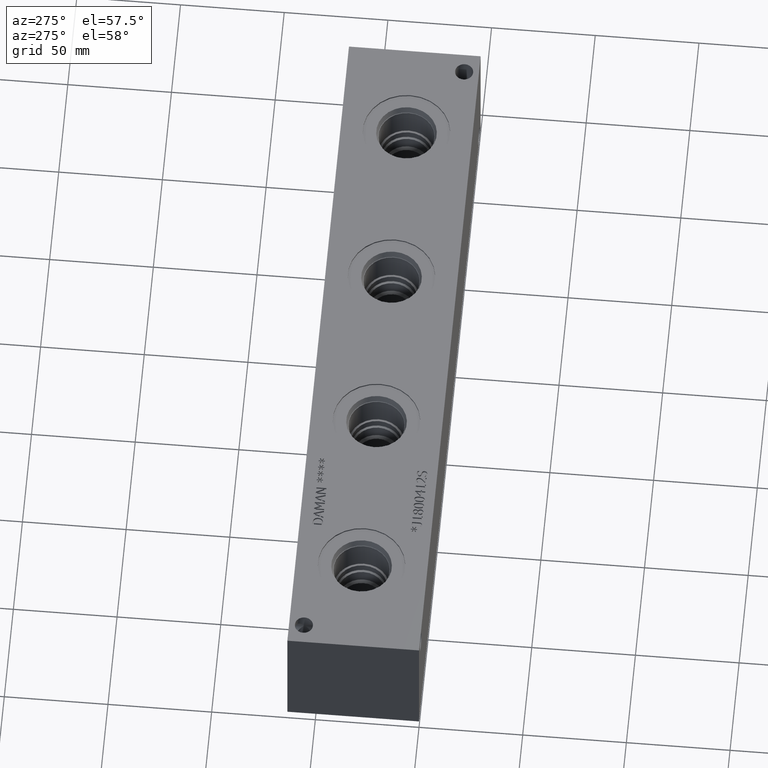
[diagram: clean part render]
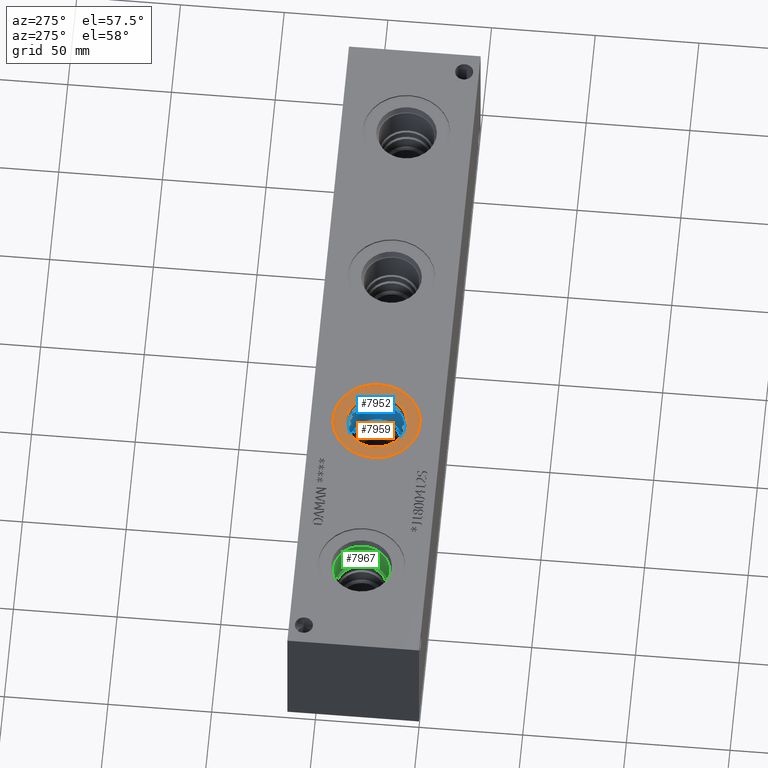
[diagram: same view with three faces highlighted in distinct colors, each labeled with its STEP entity id]
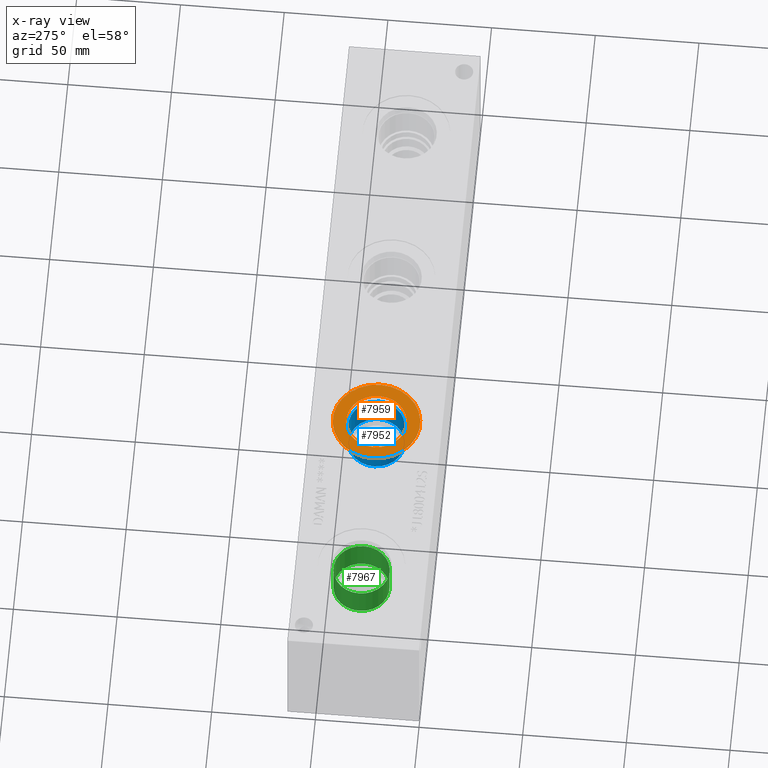
[diagram: x-ray of the same camera — body ghosted, the three highlighted faces saturated]
A machine part, auxiliary view with three faces highlighted in distinct colors.
The next image is the same camera in x-ray (body ghosted, the three faces saturated) — at least one of them is partly hidden behind the body in this view.
Their STEP definitions:

[orange] entity #7959 — the highlighted planar face has unit normal (0, 0, -1).
#245=CIRCLE('',#8447,21.0185);
#246=CIRCLE('',#8448,21.0185);
#247=CIRCLE('',#8450,14.5923);
#248=CIRCLE('',#8451,14.5923);
#316=FACE_BOUND('',#1426,.T.);
#971=FACE_OUTER_BOUND('',#1425,.T.);
#1425=EDGE_LOOP('',(#6915,#6916));
#1426=EDGE_LOOP('',(#6917,#6918));
#3686=VERTEX_POINT('',#13513);
#3687=VERTEX_POINT('',#13515);
#3688=VERTEX_POINT('',#13519);
#3689=VERTEX_POINT('',#13520);
#4775=EDGE_CURVE('',#3686,#3687,#245,.T.);
#4776=EDGE_CURVE('',#3687,#3686,#246,.T.);
#4777=EDGE_CURVE('',#3688,#3689,#247,.T.);
#4778=EDGE_CURVE('',#3689,#3688,#248,.T.);
#6915=ORIENTED_EDGE('',*,*,#4776,.F.);
#6916=ORIENTED_EDGE('',*,*,#4775,.F.);
#6917=ORIENTED_EDGE('',*,*,#4777,.T.);
#6918=ORIENTED_EDGE('',*,*,#4778,.T.);
#7264=PLANE('',#8449);
#7959=ADVANCED_FACE('',(#971,#316),#7264,.F.);
#8447=AXIS2_PLACEMENT_3D('',#13516,#10140,#10141);
#8448=AXIS2_PLACEMENT_3D('',#13517,#10142,#10143);
#8449=AXIS2_PLACEMENT_3D('',#13518,#10144,#10145);
#8450=AXIS2_PLACEMENT_3D('',#13521,#10146,#10147);
#8451=AXIS2_PLACEMENT_3D('',#13522,#10148,#10149);
#10140=DIRECTION('center_axis',(0.,0.,-1.));
#10141=DIRECTION('ref_axis',(1.,0.,0.));
#10142=DIRECTION('center_axis',(0.,0.,-1.));
#10143=DIRECTION('ref_axis',(1.,0.,0.));
#10144=DIRECTION('center_axis',(0.,0.,-1.));
#10145=DIRECTION('ref_axis',(-1.,0.,0.));
#10146=DIRECTION('center_axis',(0.,0.,-1.));
#10147=DIRECTION('ref_axis',(1.,0.,0.));
#10148=DIRECTION('center_axis',(0.,0.,-1.));
#10149=DIRECTION('ref_axis',(1.,0.,0.));
#13513=CARTESIAN_POINT('',(107.5563,31.75,62.7126));
#13515=CARTESIAN_POINT('',(149.5933,31.75,62.7126));
#13516=CARTESIAN_POINT('Origin',(128.5748,31.75,62.7126));
#13517=CARTESIAN_POINT('Origin',(128.5748,31.75,62.7126));
#13518=CARTESIAN_POINT('Origin',(143.1671,31.75,62.7126));
#13519=CARTESIAN_POINT('',(143.1671,31.75,62.7126));
#13520=CARTESIAN_POINT('',(113.9825,31.75,62.7126));
#13521=CARTESIAN_POINT('Origin',(128.5748,31.75,62.7126));
#13522=CARTESIAN_POINT('Origin',(128.5748,31.75,62.7126));

[blue] entity #7952 — the highlighted cylindrical surface (bore or boss wall) has radius 13.5001 mm, axis along (0, 0, 1).
#91=CYLINDRICAL_SURFACE('',#8434,13.5001);
#236=CIRCLE('',#8431,13.5001);
#237=CIRCLE('',#8432,13.5001);
#239=CIRCLE('',#8435,13.5001);
#964=FACE_OUTER_BOUND('',#1417,.T.);
#1417=EDGE_LOOP('',(#6881,#6882,#6883,#6884,#6885));
#2192=LINE('',#13492,#2951);
#2951=VECTOR('',#10112,13.5001);
#3677=VERTEX_POINT('',#13483);
#3678=VERTEX_POINT('',#13484);
#3680=VERTEX_POINT('',#13490);
#4760=EDGE_CURVE('',#3677,#3678,#236,.T.);
#4761=EDGE_CURVE('',#3678,#3677,#237,.T.);
#4763=EDGE_CURVE('',#3680,#3680,#239,.T.);
#4764=EDGE_CURVE('',#3680,#3678,#2192,.T.);
#6881=ORIENTED_EDGE('',*,*,#4763,.F.);
#6882=ORIENTED_EDGE('',*,*,#4764,.T.);
#6883=ORIENTED_EDGE('',*,*,#4760,.F.);
#6884=ORIENTED_EDGE('',*,*,#4761,.F.);
#6885=ORIENTED_EDGE('',*,*,#4764,.F.);
#7952=ADVANCED_FACE('',(#964),#91,.F.);
#8431=AXIS2_PLACEMENT_3D('',#13485,#10102,#10103);
#8432=AXIS2_PLACEMENT_3D('',#13486,#10104,#10105);
#8434=AXIS2_PLACEMENT_3D('',#13489,#10108,#10109);
#8435=AXIS2_PLACEMENT_3D('',#13491,#10110,#10111);
#10102=DIRECTION('center_axis',(0.,0.,1.));
#10103=DIRECTION('ref_axis',(1.,0.,0.));
#10104=DIRECTION('center_axis',(0.,0.,1.));
#10105=DIRECTION('ref_axis',(1.,0.,0.));
#10108=DIRECTION('center_axis',(0.,0.,1.));
#10109=DIRECTION('ref_axis',(1.,0.,0.));
#10110=DIRECTION('center_axis',(0.,0.,-1.));
#10111=DIRECTION('ref_axis',(1.,0.,0.));
#10112=DIRECTION('',(0.,0.,-1.));
#13483=CARTESIAN_POINT('',(142.0749,31.75,43.6626));
#13484=CARTESIAN_POINT('',(115.0747,31.75,43.6626));
#13485=CARTESIAN_POINT('Origin',(128.5748,31.75,43.6626));
#13486=CARTESIAN_POINT('Origin',(128.5748,31.75,43.6626));
#13489=CARTESIAN_POINT('Origin',(128.5748,31.75,53.5813));
#13490=CARTESIAN_POINT('',(115.0747,31.75,59.2201));
#13491=CARTESIAN_POINT('Origin',(128.5748,31.75,59.2201));
#13492=CARTESIAN_POINT('',(115.0747,31.75,53.5813));

[green] entity #7967 — the highlighted cylindrical surface (bore or boss wall) has radius 13.495 mm, axis along (0, 0, 1).
#98=CYLINDRICAL_SURFACE('',#8471,13.495);
#258=CIRCLE('',#8468,13.495);
#259=CIRCLE('',#8469,13.495);
#261=CIRCLE('',#8472,13.495);
#979=FACE_OUTER_BOUND('',#1435,.T.);
#1435=EDGE_LOOP('',(#6954,#6955,#6956,#6957,#6958));
#2204=LINE('',#13563,#2963);
#2963=VECTOR('',#10198,13.495);
#3699=VERTEX_POINT('',#13554);
#3700=VERTEX_POINT('',#13555);
#3702=VERTEX_POINT('',#13561);
#4794=EDGE_CURVE('',#3699,#3700,#258,.T.);
#4795=EDGE_CURVE('',#3700,#3699,#259,.T.);
#4797=EDGE_CURVE('',#3702,#3702,#261,.T.);
#4798=EDGE_CURVE('',#3702,#3700,#2204,.T.);
#6954=ORIENTED_EDGE('',*,*,#4797,.F.);
#6955=ORIENTED_EDGE('',*,*,#4798,.T.);
#6956=ORIENTED_EDGE('',*,*,#4794,.F.);
#6957=ORIENTED_EDGE('',*,*,#4795,.F.);
#6958=ORIENTED_EDGE('',*,*,#4798,.F.);
#7967=ADVANCED_FACE('',(#979),#98,.F.);
#8468=AXIS2_PLACEMENT_3D('',#13556,#10188,#10189);
#8469=AXIS2_PLACEMENT_3D('',#13557,#10190,#10191);
#8471=AXIS2_PLACEMENT_3D('',#13560,#10194,#10195);
#8472=AXIS2_PLACEMENT_3D('',#13562,#10196,#10197);
#10188=DIRECTION('center_axis',(0.,0.,1.));
#10189=DIRECTION('ref_axis',(1.,0.,0.));
#10190=DIRECTION('center_axis',(0.,0.,1.));
#10191=DIRECTION('ref_axis',(1.,0.,0.));
#10194=DIRECTION('center_axis',(0.,0.,1.));
#10195=DIRECTION('ref_axis',(1.,0.,0.));
#10196=DIRECTION('center_axis',(0.,0.,-1.));
#10197=DIRECTION('ref_axis',(1.,0.,0.));
#10198=DIRECTION('',(0.,0.,-1.));
#13554=CARTESIAN_POINT('',(59.5198,31.75,43.6626));
#13555=CARTESIAN_POINT('',(32.5298,31.75,43.6626));
#13556=CARTESIAN_POINT('Origin',(46.0248,31.75,43.6626));
#13557=CARTESIAN_POINT('Origin',(46.0248,31.75,43.6626));
#13560=CARTESIAN_POINT('Origin',(46.0248,31.75,53.5813));
#13561=CARTESIAN_POINT('',(32.5298,31.75,59.215));
#13562=CARTESIAN_POINT('Origin',(46.0248,31.75,59.215));
#13563=CARTESIAN_POINT('',(32.5298,31.75,53.5813));